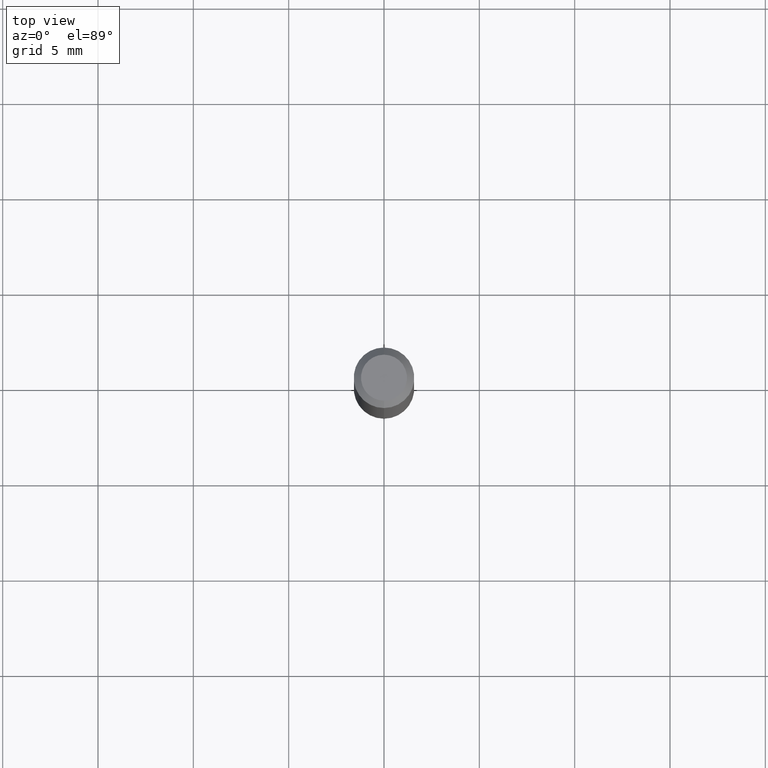
[diagram: clean part render]
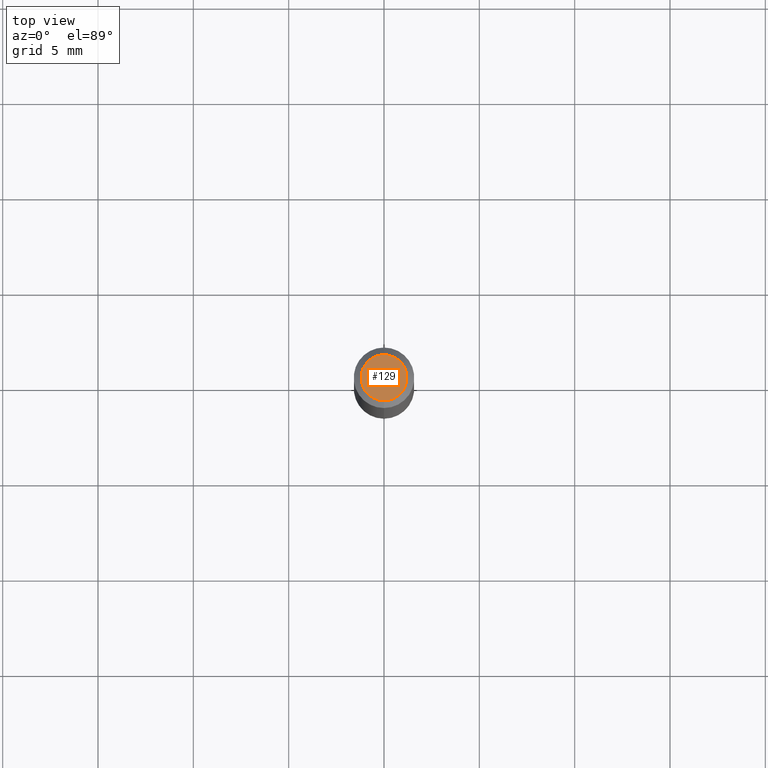
[diagram: same view with one face highlighted and labeled with its STEP entity id]
A machine part, top view. The second image highlights one B-rep face of the part: STEP entity #129.
In plain terms, the highlighted planar face has unit normal (0, -0, -1).
Its self-contained STEP definition (entity closure, byte-faithful):
#16 = CARTESIAN_POINT ( 'NONE',  ( -3.773273898774340269E-16, -0.04749999999999999362, 1.569851752722733387E-16 ) ) ;
#21 = CIRCLE ( 'NONE', #196, 0.04749999999999999362 ) ;
#51 = DIRECTION ( 'NONE',  ( 2.445467841293649970E-29, -3.491482720622672358E-15, -1.000000000000000000 ) ) ;
#64 = ORIENTED_EDGE ( 'NONE', *, *, #167, .T. ) ;
#80 = AXIS2_PLACEMENT_3D ( 'NONE', #405, #51, #207 ) ;
#81 = AXIS2_PLACEMENT_3D ( 'NONE', #141, #218, #459 ) ;
#95 = ORIENTED_EDGE ( 'NONE', *, *, #261, .T. ) ;
#125 = VERTEX_POINT ( 'NONE', #169 ) ;
#129 = ADVANCED_FACE ( 'NONE', ( #292 ), #402, .F. ) ;
#136 = VERTEX_POINT ( 'NONE', #16 ) ;
#141 = CARTESIAN_POINT ( 'NONE',  ( 2.166746611828072802E-46, -3.093542359225412079E-32, -8.860253957303587473E-18 ) ) ;
#143 = DIRECTION ( 'NONE',  ( -6.982962677686266711E-15, -1.000000000000000000, 3.491482720622672753E-15 ) ) ;
#167 = EDGE_CURVE ( 'NONE', #125, #136, #21, .T. ) ;
#169 = CARTESIAN_POINT ( 'NONE',  ( 3.840629472727447874E-16, 0.04749999999999999362, -1.747056831868805136E-16 ) ) ;
#177 = DIRECTION ( 'NONE',  ( -2.445467841293650250E-29, 3.491482720622672358E-15, 1.000000000000000000 ) ) ;
#196 = AXIS2_PLACEMENT_3D ( 'NONE', #305, #177, #143 ) ;
#207 = DIRECTION ( 'NONE',  ( 6.982962677686265922E-15, 1.000000000000000000, -3.491482720622672358E-15 ) ) ;
#218 = DIRECTION ( 'NONE',  ( -2.445467841293650250E-29, 3.491482720622672358E-15, 1.000000000000000000 ) ) ;
#261 = EDGE_CURVE ( 'NONE', #136, #125, #333, .T. ) ;
#292 = FACE_OUTER_BOUND ( 'NONE', #506, .T. ) ;
#305 = CARTESIAN_POINT ( 'NONE',  ( 2.166746611828072802E-46, -3.093542359225412079E-32, -8.860253957303587473E-18 ) ) ;
#333 = CIRCLE ( 'NONE', #81, 0.04749999999999999362 ) ;
#402 = PLANE ( 'NONE',  #80 ) ;
#405 = CARTESIAN_POINT ( 'NONE',  ( 3.316907271900976096E-16, 0.04749999999999999362, -1.702755562082287199E-16 ) ) ;
#459 = DIRECTION ( 'NONE',  ( -6.982962677686266711E-15, -1.000000000000000000, 3.491482720622672753E-15 ) ) ;
#506 = EDGE_LOOP ( 'NONE', ( #64, #95 ) ) ;